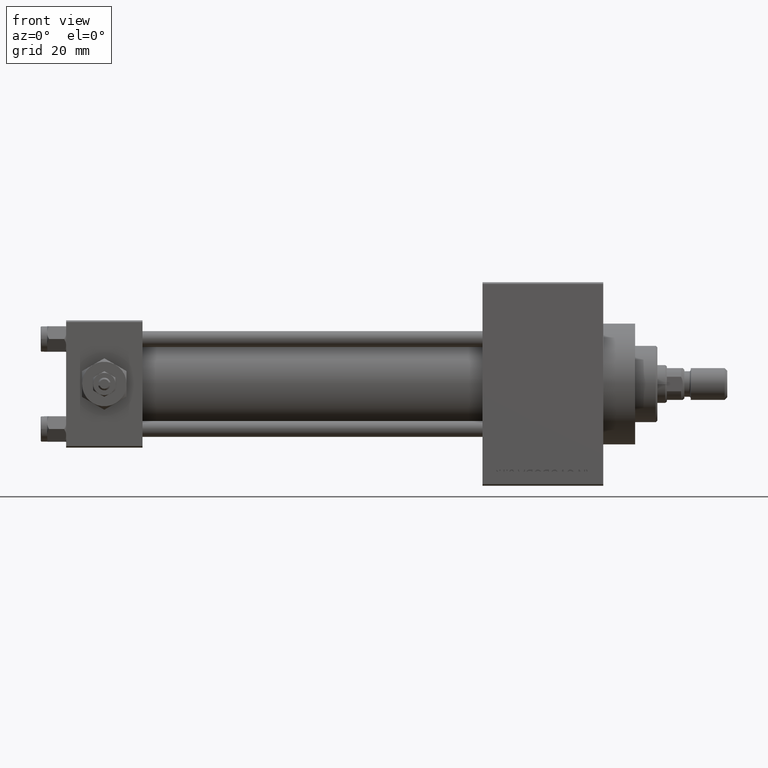
[diagram: clean part render]
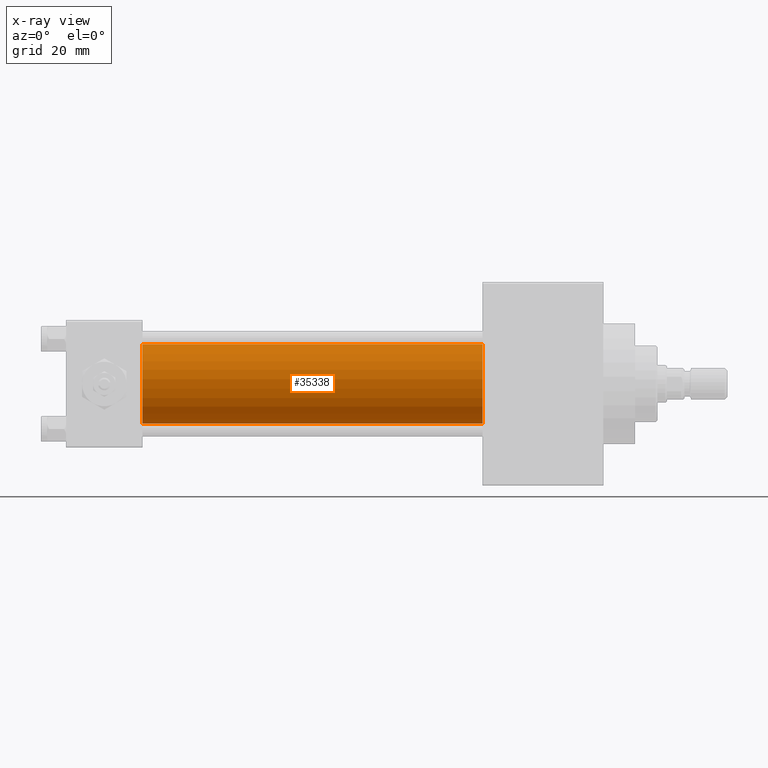
[diagram: x-ray — body ghosted, one internal face saturated and labeled with its STEP entity id]
A machine part, front view, then the same camera in x-ray: the body is ghosted and one INTERNAL B-rep face — a face not visible from any outside direction — is saturated and labeled: STEP entity #35338.
In plain terms, the highlighted cylindrical surface (partial cylindrical patch) has radius 12.5 mm, axis along (-1, -0, -0).
Its self-contained STEP definition (entity closure, byte-faithful):
#1917 = LINE ( 'NONE', #20861, #24590 ) ;
#4497 = EDGE_LOOP ( 'NONE', ( #15142, #43652, #46401, #38418 ) ) ;
#4556 = CIRCLE ( 'NONE', #46686, 12.49999999999999645 ) ;
#5798 = CARTESIAN_POINT ( 'NONE',  ( 131.0000000000000000, -2.602085213965210642E-15, 0.000000000000000000 ) ) ;
#6306 = DIRECTION ( 'NONE',  ( 0.000000000000000000, 0.000000000000000000, 1.000000000000000000 ) ) ;
#7733 = VECTOR ( 'NONE', #46331, 1000.000000000000000 ) ;
#8281 = LINE ( 'NONE', #24213, #7733 ) ;
#9433 = DIRECTION ( 'NONE',  ( 0.000000000000000000, 0.000000000000000000, -1.000000000000000000 ) ) ;
#11552 = CARTESIAN_POINT ( 'NONE',  ( 131.0000000000000000, -2.602085213965210642E-15, 12.49999999999999645 ) ) ;
#12818 = FACE_OUTER_BOUND ( 'NONE', #4497, .T. ) ;
#14129 = EDGE_CURVE ( 'NONE', #29340, #16218, #4556, .T. ) ;
#15142 = ORIENTED_EDGE ( 'NONE', *, *, #25790, .T. ) ;
#16218 = VERTEX_POINT ( 'NONE', #42480 ) ;
#18127 = AXIS2_PLACEMENT_3D ( 'NONE', #5798, #27990, #6306 ) ;
#20492 = CARTESIAN_POINT ( 'NONE',  ( 24.00000000000000000, -2.602085213965210642E-15, 0.000000000000000000 ) ) ;
#20861 = CARTESIAN_POINT ( 'NONE',  ( 131.0000000000000000, -2.602085213965210642E-15, 12.49999999999999645 ) ) ;
#22965 = VERTEX_POINT ( 'NONE', #11552 ) ;
#23897 = DIRECTION ( 'NONE',  ( 1.000000000000000000, 0.000000000000000000, 0.000000000000000000 ) ) ;
#24130 = CARTESIAN_POINT ( 'NONE',  ( 131.0000000000000000, -2.602085213965210642E-15, 0.000000000000000000 ) ) ;
#24213 = CARTESIAN_POINT ( 'NONE',  ( 131.0000000000000000, -1.071276715031019515E-15, -12.49999999999999645 ) ) ;
#24277 = AXIS2_PLACEMENT_3D ( 'NONE', #24130, #23897, #9433 ) ;
#24590 = VECTOR ( 'NONE', #24602, 1000.000000000000000 ) ;
#24602 = DIRECTION ( 'NONE',  ( -1.000000000000000000, -0.000000000000000000, -0.000000000000000000 ) ) ;
#24706 = DIRECTION ( 'NONE',  ( 0.000000000000000000, 0.000000000000000000, -1.000000000000000000 ) ) ;
#25790 = EDGE_CURVE ( 'NONE', #22965, #30434, #45695, .T. ) ;
#27990 = DIRECTION ( 'NONE',  ( -1.000000000000000000, -0.000000000000000000, -0.000000000000000000 ) ) ;
#28675 = DIRECTION ( 'NONE',  ( 1.000000000000000000, 0.000000000000000000, 0.000000000000000000 ) ) ;
#29340 = VERTEX_POINT ( 'NONE', #47420 ) ;
#30434 = VERTEX_POINT ( 'NONE', #33619 ) ;
#31292 = EDGE_CURVE ( 'NONE', #30434, #16218, #8281, .T. ) ;
#33619 = CARTESIAN_POINT ( 'NONE',  ( 131.0000000000000000, -1.071276715031019515E-15, -12.49999999999999645 ) ) ;
#35338 = ADVANCED_FACE ( 'NONE', ( #12818 ), #46881, .F. ) ;
#37945 = EDGE_CURVE ( 'NONE', #22965, #29340, #1917, .T. ) ;
#38418 = ORIENTED_EDGE ( 'NONE', *, *, #37945, .F. ) ;
#42480 = CARTESIAN_POINT ( 'NONE',  ( 24.00000000000000000, -1.071276715031019515E-15, -12.49999999999999645 ) ) ;
#43652 = ORIENTED_EDGE ( 'NONE', *, *, #31292, .T. ) ;
#45695 = CIRCLE ( 'NONE', #24277, 12.49999999999999645 ) ;
#46331 = DIRECTION ( 'NONE',  ( -1.000000000000000000, -0.000000000000000000, -0.000000000000000000 ) ) ;
#46401 = ORIENTED_EDGE ( 'NONE', *, *, #14129, .F. ) ;
#46686 = AXIS2_PLACEMENT_3D ( 'NONE', #20492, #28675, #24706 ) ;
#46881 = CYLINDRICAL_SURFACE ( 'NONE', #18127, 12.49999999999999645 ) ;
#47420 = CARTESIAN_POINT ( 'NONE',  ( 24.00000000000000000, -2.602085213965210642E-15, 12.49999999999999645 ) ) ;